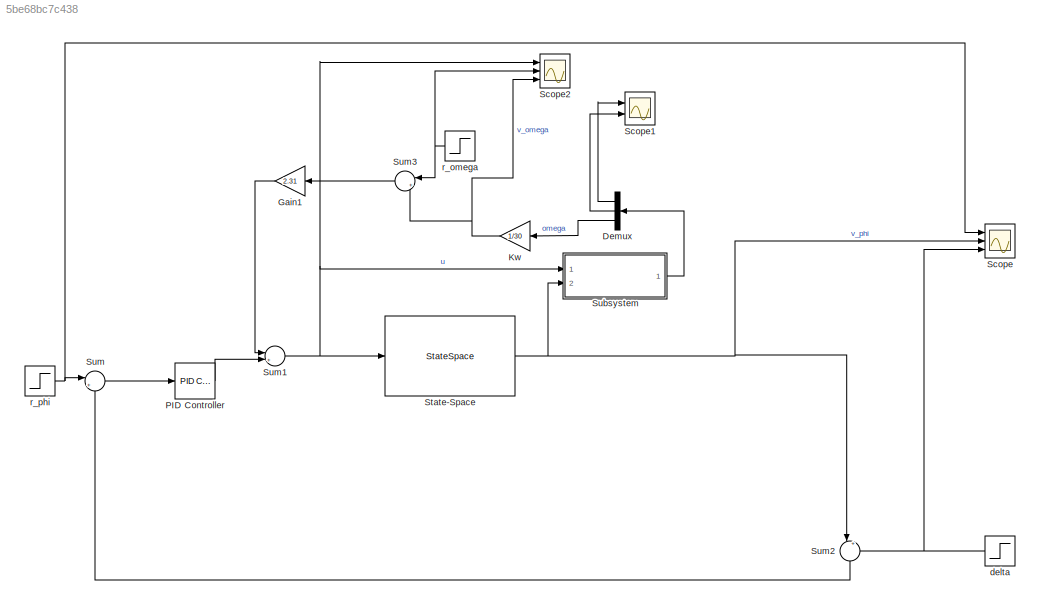
MODEL slx_5be68bc7c438
KIND model
CONFIG AbsTol = auto
CONFIG EnableMultiTasking = off
CONFIG FixedStep = auto
CONFIG MaxStep = auto
CONFIG MinStep = auto
CONFIG RelTol = 1e-3
CONFIG SampleTimeConstraint = Unconstrained
CONFIG SolverName = VariableStepAuto
CONFIG StartTime = 0.0
CONFIG StopTime = 10.0
BLOCK [Demux] Demux
  NameLocation = top
  Outputs = 3
  Ports = [1, 3]
BLOCK [Gain] Gain1
  Gain = 2.31
  NameLocation = top
BLOCK [Gain] Kw
  Gain = 1/30
  NameLocation = top
BLOCK [Reference] PID Controller  REF=pid_lib/PID Controller
  Ports = [1, 1]
  SourceBlock = pid_lib/PID Controller
  SourceProductBaseCode = SL
  SourceType = PID 1dof
BLOCK [Scope] Scope
  Floating = off
  NumInputPorts = 3
  Ports = [3]
  ScopeSpecificationString = Simulink.scopes.TimeScopeBlockCfg('CurrentConfiguration', extmgr.ConfigurationSet(extmgr.Configuration('Core','General UI',true),extmgr.Configuration('Core','Source UI',true),extmgr.Configuration('Sources','WiredSimulink',true),extmgr.Configuration('Visuals','Time Domain',true,'SerializedDisplays',{struct('MinYLimReal','-1316295107979518493522836536373040998548590251798457673402209461004664832.000...<+1911ch>
BLOCK [Scope] Scope1
  Floating = off
  NumInputPorts = 2
  Ports = [2]
  ScopeSpecificationString = Simulink.scopes.TimeScopeBlockCfg('CurrentConfiguration', extmgr.ConfigurationSet(extmgr.Configuration('Core','General UI',true),extmgr.Configuration('Core','Source UI',true),extmgr.Configuration('Sources','WiredSimulink',true,'DataLoggingVariableName','ScopeData1'),extmgr.Configuration('Visuals','Time Domain',true,'SerializedDisplays',{struct('MinYLimReal','-15104961888701719437960914597233858899...<+1948ch>
BLOCK [Scope] Scope2
  Floating = off
  NumInputPorts = 3
  Ports = [3]
  ScopeSpecificationString = Simulink.scopes.TimeScopeBlockCfg('CurrentConfiguration', extmgr.ConfigurationSet(extmgr.Configuration('Core','General UI',true),extmgr.Configuration('Core','Source UI',true),extmgr.Configuration('Sources','WiredSimulink',true,'DataLoggingVariableName','ScopeData2'),extmgr.Configuration('Visuals','Time Domain',true,'SerializedDisplays',{struct('MinYLimReal','-52867615441581062646972030234196339181...<+1962ch>
BLOCK [StateSpace] State-Space
  A = [0 1 0; 23.5031 0 0.0045; -23.5031 0 -19.9513]
  B = [0; 0.1393; -621.6819]
  C = [107.47 0 0]
  D = 0
  InitialCondition = [0.0019 0 0]
  Ports = [1, 1]
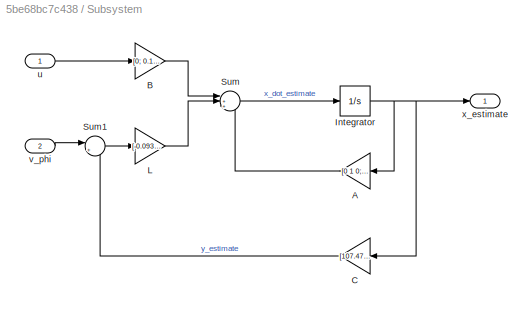
BLOCK [SubSystem] Subsystem
  Ports = [2, 1]
  RequestExecContextInheritance = off
BLOCK [Gain] Subsystem/A
  Gain = [0 1 0; 23.5031 0 0.0045; -23.5031 0 -19.9513]
  Multiplication = Matrix(K*u)
  NameLocation = top
BLOCK [Gain] Subsystem/B
  Gain = [0; 0.1393; -621.6819]
  Multiplication = Matrix(K*u)
BLOCK [Gain] Subsystem/C
  Gain = [107.47 0 0]
  Multiplication = Matrix(K*u)
  NameLocation = top
BLOCK [Integrator] Subsystem/Integrator
  Ports = [1, 1]
BLOCK [Gain] Subsystem/L
  Gain = [-0.093505; -1.1446; 2037.7]
  Multiplication = Matrix(K*u)
BLOCK [Sum] Subsystem/Sum
  Inputs = |+++
  Ports = [3, 1]
BLOCK [Sum] Subsystem/Sum1
  Inputs = |+-
  Ports = [2, 1]
BLOCK [Inport] Subsystem/u
BLOCK [Inport] Subsystem/v_phi
  Port = 2
BLOCK [Outport] Subsystem/x_estimate
BLOCK [Sum] Sum
  Inputs = |+-
  Ports = [2, 1]
BLOCK [Sum] Sum1
  Inputs = |++
  Ports = [2, 1]
BLOCK [Sum] Sum2
  Inputs = |++
  NameLocation = left
  Ports = [2, 1]
BLOCK [Sum] Sum3
  Inputs = |+-
  NameLocation = top
  Ports = [2, 1]
BLOCK [Step] delta
  After = 0.2
  NameLocation = top
  SampleTime = 0
  Time = 1.5
BLOCK [Step] r_omega
  After = 2.5
  NameLocation = top
  SampleTime = 0
  Time = 2.5
BLOCK [Step] r_phi
  After = 0
  SampleTime = 0
  Time = 0
LINE Demux:1 -> Scope1:1
LINE Demux:2 -> Scope1:2
LINE Demux:3 -> Kw:1
LINE Gain1:1 -> Sum1:1
NET Kw:1 -> Scope2:3, Sum3:2
LINE PID Controller:1 -> Sum1:2
NET State-Space:1 -> Scope:2, Subsystem:2, Sum2:1
LINE Subsystem/A:1 -> Subsystem/Sum:3
LINE Subsystem/B:1 -> Subsystem/Sum:1
LINE Subsystem/C:1 -> Subsystem/Sum1:2
NET Subsystem/Integrator:1 -> Subsystem/A:1, Subsystem/C:1, Subsystem/x_estimate:1
LINE Subsystem/L:1 -> Subsystem/Sum:2
LINE Subsystem/Sum1:1 -> Subsystem/L:1
LINE Subsystem/Sum:1 -> Subsystem/Integrator:1
LINE Subsystem/u:1 -> Subsystem/B:1
LINE Subsystem/v_phi:1 -> Subsystem/Sum1:1
LINE Subsystem:1 -> Demux:1
NET Sum1:1 -> Scope2:1, State-Space:1, Subsystem:1
LINE Sum2:1 -> Sum:2
LINE Sum3:1 -> Gain1:1
LINE Sum:1 -> PID Controller:1
NET delta:1 -> Scope:3, Sum2:2
NET r_omega:1 -> Scope2:2, Sum3:1
NET r_phi:1 -> Scope:1, Sum:1
note: NET lines group one-source signal fan-out (src -> all destinations, sorted); 1:1 wires keep LINE
